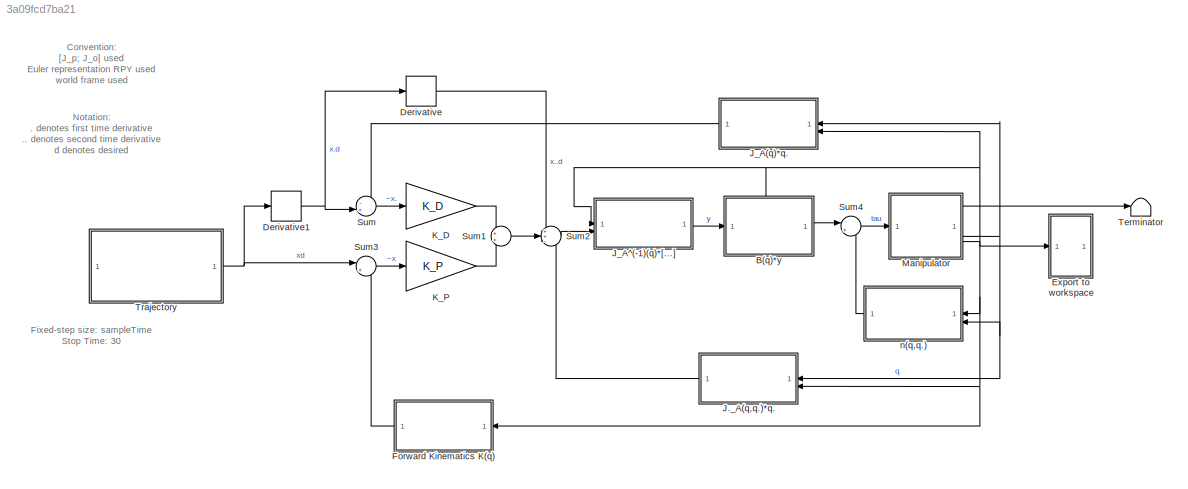
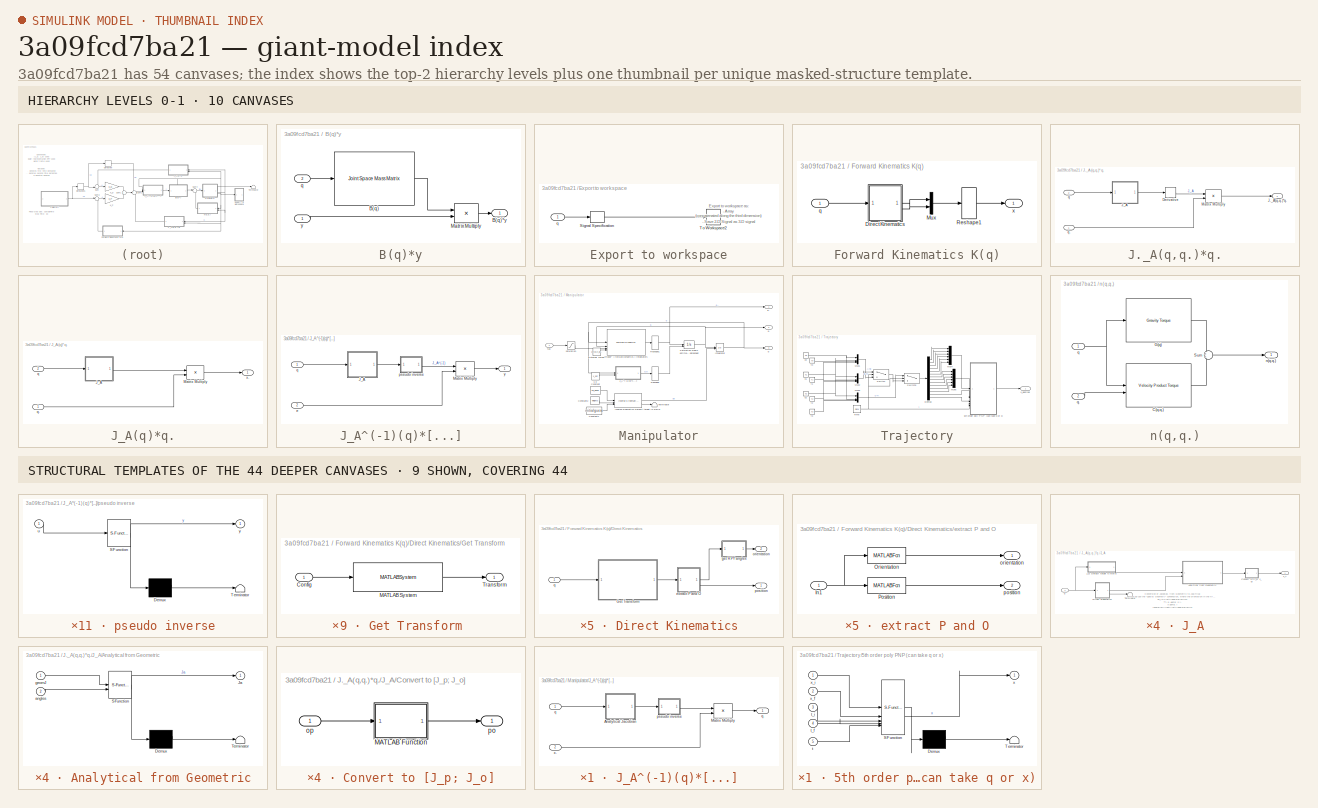
[diagram: thumbnail index - top-2 hierarchy levels (10 canvases) + 9 structural-template representatives of the remaining 44 canvases]
MODEL slx_3a09fcd7ba21
KIND model
CONFIG AbsTol = auto
CONFIG EnableMultiTasking = off
CONFIG FixedStep = sampleTime
CONFIG MaxStep = auto
CONFIG MinStep = auto
CONFIG RelTol = 1e-3
CONFIG SampleTimeConstraint = Unconstrained
CONFIG SolverName = FixedStepAuto
CONFIG StartTime = 0.0
CONFIG StopTime = 30
BLOCK [SubSystem] B(q)*y
  PortSchema = {"entries":[{"content":{"sides":[{"content":{"connectorIds":["In1"]},"type":"ConnectorPlacement.EquallySpacedRectSide","uuid":"33913df9-fd91-41b2-9bc7-1b3e33a51275"},{"content":{"connectorIds":["Out1"],"side":"RIGHT"},"type":"ConnectorPlacement.EquallySpacedRectSide","uuid":"b12fb46d-67b4-41c7-9bd3-75276d256d3b"},{"content":{"connectorIds":["In2"],"side":"TOP"},"type":"ConnectorPlacement.EquallySp...<+245ch>
BLOCK [Reference] B(q)*y/B(q)  REF=robotmaniplib/Joint Space Mass Matrix
  SourceBlock = robotmaniplib/Joint Space Mass Matrix
  SourceType = Joint Space Mass Matrix
BLOCK [Outport] B(q)*y/B(q)*y
BLOCK [Product] B(q)*y/Matrix Multiply
  Multiplication = Matrix(*)
BLOCK [Inport] B(q)*y/q
  Port = 2
BLOCK [Inport] B(q)*y/y
BLOCK [Derivative] Derivative
BLOCK [Derivative] Derivative1
BLOCK [SubSystem] Export to workspace
  NameLocation = right
BLOCK [SignalSpecification] Export to workspace/Signal Specification
  Dimensions = [6,1]
BLOCK [ToWorkspace] Export to workspace/To Workspace2
  MaxDataPoints = inf
  NameLocation = top
  SampleTime = -1
  VariableName = q
BLOCK [Inport] Export to workspace/q
BLOCK [SubSystem] Forward Kinematics K(q)
BLOCK [SubSystem] Forward Kinematics K(q)/Direct Kinematics
BLOCK [SubSystem] Forward Kinematics K(q)/Direct Kinematics/Get Transform 
  LibrarySourceBlock = robotmaniplib/Get Transform
BLOCK [Inport] Forward Kinematics K(q)/Direct Kinematics/Get Transform /Config
  PortDimensions = 6
BLOCK [MATLABSystem] Forward Kinematics K(q)/Direct Kinematics/Get Transform /MATLAB System
  MaskDisplay = disp('GetTransformBlock');\nport_label('input',1,'q');\nport_label('output',1,'tform');
  MaskType = robotics.slmanip.internal.block.GetTransformBlock
  SimulateUsing = Code generation
  SourceBodyName = SourceBody
  System = robotics.slmanip.internal.block.GetTransformBlock
  TargetBodyName = TargetBody
  TreeStruct = TreeStruct
BLOCK [Outport] Forward Kinematics K(q)/Direct Kinematics/Get Transform /Transform
  VectorParamsAs1DForOutWhenUnconnected = off
BLOCK [SubSystem] Forward Kinematics K(q)/Direct Kinematics/extract P and O
BLOCK [Inport] Forward Kinematics K(q)/Direct Kinematics/extract P and O/In1
  NameLocation = top
BLOCK [MATLABFcn] Forward Kinematics K(q)/Direct Kinematics/extract P and O/Orientation
  MATLABFcn = tform2rotm
  Output1D = off
BLOCK [MATLABFcn] Forward Kinematics K(q)/Direct Kinematics/extract P and O/Position
  MATLABFcn = tform2trvec
BLOCK [Outport] Forward Kinematics K(q)/Direct Kinematics/extract P and O/orientation
  NameLocation = top
BLOCK [Outport] Forward Kinematics K(q)/Direct Kinematics/extract P and O/position
  NameLocation = top
  Port = 2
BLOCK [SubSystem] Forward Kinematics K(q)/Direct Kinematics/get RPY angles
  ErrorFcn = Stateflow.Translate.translate
  PermitHierarchicalResolution = ExplicitOnly
  SFBlockType = MATLAB Function
  TreatAsAtomicUnit = on
BLOCK [Demux] Forward Kinematics K(q)/Direct Kinematics/get RPY angles/ Demux 
  Outputs = 1
BLOCK [S-Function] Forward Kinematics K(q)/Direct Kinematics/get RPY angles/ SFunction 
  EnableBusSupport = on
  FunctionName = sf_sfun
  PortCounts = [1 2]
  SFcnIsStateOwnerBlock = off
  SFunctionDeploymentMode = off
  Tag = Stateflow S-Function 6
BLOCK [Terminator] Forward Kinematics K(q)/Direct Kinematics/get RPY angles/ Terminator 
BLOCK [Inport] Forward Kinematics K(q)/Direct Kinematics/get RPY angles/R
BLOCK [Outport] Forward Kinematics K(q)/Direct Kinematics/get RPY angles/rpy
BLOCK [Outport] Forward Kinematics K(q)/Direct Kinematics/orientation
  NameLocation = top
  Port = 2
BLOCK [Outport] Forward Kinematics K(q)/Direct Kinematics/position
BLOCK [Inport] Forward Kinematics K(q)/Direct Kinematics/q
BLOCK [Mux] Forward Kinematics K(q)/Mux
  DisplayOption = bar
  Inputs = 2
BLOCK [Reshape] Forward Kinematics K(q)/Reshape1
  OutputDimensionality = Customize
  OutputDimensions = [6,1]
BLOCK [Inport] Forward Kinematics K(q)/q
BLOCK [Outport] Forward Kinematics K(q)/x
BLOCK [SubSystem] J._A(q,q.)*q.
BLOCK [Derivative] J._A(q,q.)*q./Derivative
BLOCK [Outport] J._A(q,q.)*q./J._A(q,q.)*q.
BLOCK [SubSystem] J._A(q,q.)*q./J_A
BLOCK [SubSystem] J._A(q,q.)*q./J_A/Analytical from Geometric
  ErrorFcn = Stateflow.Translate.translate
  PermitHierarchicalResolution = ExplicitOnly
  SFBlockType = MATLAB Function
  TreatAsAtomicUnit = on
BLOCK [Demux] J._A(q,q.)*q./J_A/Analytical from Geometric/ Demux 
  Outputs = 1
BLOCK [S-Function] J._A(q,q.)*q./J_A/Analytical from Geometric/ SFunction 
  EnableBusSupport = on
  FunctionName = sf_sfun
  PortCounts = [2 2]
  SFcnIsStateOwnerBlock = off
  SFunctionDeploymentMode = off
  Tag = Stateflow S-Function 9
BLOCK [Terminator] J._A(q,q.)*q./J_A/Analytical from Geometric/ Terminator 
BLOCK [Outport] J._A(q,q.)*q./J_A/Analytical from Geometric/Ja
BLOCK [Inport] J._A(q,q.)*q./J_A/Analytical from Geometric/angles
  Port = 2
BLOCK [Inport] J._A(q,q.)*q./J_A/Analytical from Geometric/geomJ
BLOCK [SubSystem] J._A(q,q.)*q./J_A/Convert to [J_p; J_o]
BLOCK [SubSystem] J._A(q,q.)*q./J_A/Convert to [J_p; J_o]/MATLAB Function
  ErrorFcn = Stateflow.Translate.translate
  PermitHierarchicalResolution = ExplicitOnly
  SFBlockType = MATLAB Function
  TreatAsAtomicUnit = on
BLOCK [Demux] J._A(q,q.)*q./J_A/Convert to [J_p; J_o]/MATLAB Function/ Demux 
  Outputs = 1
BLOCK [S-Function] J._A(q,q.)*q./J_A/Convert to [J_p; J_o]/MATLAB Function/ SFunction 
  EnableBusSupport = on
  FunctionName = sf_sfun
  PortCounts = [1 2]
  SFcnIsStateOwnerBlock = off
  SFunctionDeploymentMode = off
  Tag = Stateflow S-Function 12
BLOCK [Terminator] J._A(q,q.)*q./J_A/Convert to [J_p; J_o]/MATLAB Function/ Terminator 
BLOCK [Inport] J._A(q,q.)*q./J_A/Convert to [J_p; J_o]/MATLAB Function/u
BLOCK [Outport] J._A(q,q.)*q./J_A/Convert to [J_p; J_o]/MATLAB Function/y
BLOCK [Inport] J._A(q,q.)*q./J_A/Convert to [J_p; J_o]/op
BLOCK [Outport] J._A(q,q.)*q./J_A/Convert to [J_p; J_o]/po
BLOCK [SubSystem] J._A(q,q.)*q./J_A/Direct Kinematics
BLOCK [SubSystem] J._A(q,q.)*q./J_A/Direct Kinematics/Get Transform
  LibrarySourceBlock = robotmaniplib/Get Transform
BLOCK [Inport] J._A(q,q.)*q./J_A/Direct Kinematics/Get Transform/Config
  PortDimensions = 6
BLOCK [MATLABSystem] J._A(q,q.)*q./J_A/Direct Kinematics/Get Transform/MATLAB System
  MaskDisplay = disp('GetTransformBlock');\nport_label('input',1,'q');\nport_label('output',1,'tform');
  MaskType = robotics.slmanip.internal.block.GetTransformBlock
  SimulateUsing = Code generation
  SourceBodyName = SourceBody
  System = robotics.slmanip.internal.block.GetTransformBlock
  TargetBodyName = TargetBody
  TreeStruct = TreeStruct
BLOCK [Outport] J._A(q,q.)*q./J_A/Direct Kinematics/Get Transform/Transform
  VectorParamsAs1DForOutWhenUnconnected = off
BLOCK [SubSystem] J._A(q,q.)*q./J_A/Direct Kinematics/extract P and O
BLOCK [Inport] J._A(q,q.)*q./J_A/Direct Kinematics/extract P and O/In1
  NameLocation = top
BLOCK [MATLABFcn] J._A(q,q.)*q./J_A/Direct Kinematics/extract P and O/Orientation
  MATLABFcn = tform2rotm
  Output1D = off
BLOCK [MATLABFcn] J._A(q,q.)*q./J_A/Direct Kinematics/extract P and O/Position
  MATLABFcn = tform2trvec
BLOCK [Outport] J._A(q,q.)*q./J_A/Direct Kinematics/extract P and O/orientation
  NameLocation = top
BLOCK [Outport] J._A(q,q.)*q./J_A/Direct Kinematics/extract P and O/position
  NameLocation = top
  Port = 2
BLOCK [SubSystem] J._A(q,q.)*q./J_A/Direct Kinematics/get RPY angles
  ErrorFcn = Stateflow.Translate.translate
  PermitHierarchicalResolution = ExplicitOnly
  SFBlockType = MATLAB Function
  TreatAsAtomicUnit = on
BLOCK [Demux] J._A(q,q.)*q./J_A/Direct Kinematics/get RPY angles/ Demux 
  Outputs = 1
BLOCK [S-Function] J._A(q,q.)*q./J_A/Direct Kinematics/get RPY angles/ SFunction 
  EnableBusSupport = on
  FunctionName = sf_sfun
  PortCounts = [1 2]
  SFcnIsStateOwnerBlock = off
  SFunctionDeploymentMode = off
  Tag = Stateflow S-Function 10
BLOCK [Terminator] J._A(q,q.)*q./J_A/Direct Kinematics/get RPY angles/ Terminator 
BLOCK [Inport] J._A(q,q.)*q./J_A/Direct Kinematics/get RPY angles/R
BLOCK [Outport] J._A(q,q.)*q./J_A/Direct Kinematics/get RPY angles/rpy
BLOCK [Outport] J._A(q,q.)*q./J_A/Direct Kinematics/orientation
  NameLocation = top
BLOCK [Outport] J._A(q,q.)*q./J_A/Direct Kinematics/position
  Port = 2
BLOCK [Inport] J._A(q,q.)*q./J_A/Direct Kinematics/q
BLOCK [Outport] J._A(q,q.)*q./J_A/J_A
BLOCK [SubSystem] J._A(q,q.)*q./J_A/J_G Default target is world
  LibrarySourceBlock = robotmaniplib/Get Jacobian
BLOCK [Inport] J._A(q,q.)*q./J_A/J_G Default target is world/Config
  PortDimensions = 6
BLOCK [Outport] J._A(q,q.)*q./J_A/J_G Default target is world/Jacobian
  VectorParamsAs1DForOutWhenUnconnected = off
BLOCK [MATLABSystem] J._A(q,q.)*q./J_A/J_G Default target is world/MATLAB System
  EEBodyName = EndEffector
  MaskDisplay = disp('GetJacobianBlock');\nport_label('input',1,'q');\nport_label('output',1,'jacobianMat');
  MaskType = robotics.slmanip.internal.block.GetJacobianBlock
  SimulateUsing = Code generation
  System = robotics.slmanip.internal.block.GetJacobianBlock
  TreeStruct = TreeStruct
BLOCK [Terminator] J._A(q,q.)*q./J_A/Terminator
BLOCK [Inport] J._A(q,q.)*q./J_A/q
BLOCK [Product] J._A(q,q.)*q./Matrix Multiply
  Multiplication = Matrix(*)
BLOCK [Inport] J._A(q,q.)*q./q
  Port = 2
BLOCK [Inport] J._A(q,q.)*q./q.
BLOCK [SubSystem] J_A(q)*q.
BLOCK [SubSystem] J_A(q)*q./J_A
BLOCK [SubSystem] J_A(q)*q./J_A/Analytical from Geometric
  ErrorFcn = Stateflow.Translate.translate
  PermitHierarchicalResolution = ExplicitOnly
  SFBlockType = MATLAB Function
  TreatAsAtomicUnit = on
BLOCK [Demux] J_A(q)*q./J_A/Analytical from Geometric/ Demux 
  Outputs = 1
BLOCK [S-Function] J_A(q)*q./J_A/Analytical from Geometric/ SFunction 
  EnableBusSupport = on
  FunctionName = sf_sfun
  PortCounts = [2 2]
  SFcnIsStateOwnerBlock = off
  SFunctionDeploymentMode = off
  Tag = Stateflow S-Function 5
BLOCK [Terminator] J_A(q)*q./J_A/Analytical from Geometric/ Terminator 
BLOCK [Outport] J_A(q)*q./J_A/Analytical from Geometric/Ja
BLOCK [Inport] J_A(q)*q./J_A/Analytical from Geometric/angles
  Port = 2
BLOCK [Inport] J_A(q)*q./J_A/Analytical from Geometric/geomJ
BLOCK [SubSystem] J_A(q)*q./J_A/Convert to [J_p; J_o]
BLOCK [SubSystem] J_A(q)*q./J_A/Convert to [J_p; J_o]/MATLAB Function
  ErrorFcn = Stateflow.Translate.translate
  PermitHierarchicalResolution = ExplicitOnly
  SFBlockType = MATLAB Function
  TreatAsAtomicUnit = on
BLOCK [Demux] J_A(q)*q./J_A/Convert to [J_p; J_o]/MATLAB Function/ Demux 
  Outputs = 1
BLOCK [S-Function] J_A(q)*q./J_A/Convert to [J_p; J_o]/MATLAB Function/ SFunction 
  EnableBusSupport = on
  FunctionName = sf_sfun
  PortCounts = [1 2]
  SFcnIsStateOwnerBlock = off
  SFunctionDeploymentMode = off
  Tag = Stateflow S-Function 15
BLOCK [Terminator] J_A(q)*q./J_A/Convert to [J_p; J_o]/MATLAB Function/ Terminator 
BLOCK [Inport] J_A(q)*q./J_A/Convert to [J_p; J_o]/MATLAB Function/u
BLOCK [Outport] J_A(q)*q./J_A/Convert to [J_p; J_o]/MATLAB Function/y
BLOCK [Inport] J_A(q)*q./J_A/Convert to [J_p; J_o]/op
BLOCK [Outport] J_A(q)*q./J_A/Convert to [J_p; J_o]/po
BLOCK [SubSystem] J_A(q)*q./J_A/Direct Kinematics
BLOCK [SubSystem] J_A(q)*q./J_A/Direct Kinematics/Get Transform
  LibrarySourceBlock = robotmaniplib/Get Transform
BLOCK [Inport] J_A(q)*q./J_A/Direct Kinematics/Get Transform/Config
  PortDimensions = 6
BLOCK [MATLABSystem] J_A(q)*q./J_A/Direct Kinematics/Get Transform/MATLAB System
  MaskDisplay = disp('GetTransformBlock');\nport_label('input',1,'q');\nport_label('output',1,'tform');
  MaskType = robotics.slmanip.internal.block.GetTransformBlock
  SimulateUsing = Code generation
  SourceBodyName = SourceBody
  System = robotics.slmanip.internal.block.GetTransformBlock
  TargetBodyName = TargetBody
  TreeStruct = TreeStruct
BLOCK [Outport] J_A(q)*q./J_A/Direct Kinematics/Get Transform/Transform
  VectorParamsAs1DForOutWhenUnconnected = off
BLOCK [SubSystem] J_A(q)*q./J_A/Direct Kinematics/extract P and O
BLOCK [Inport] J_A(q)*q./J_A/Direct Kinematics/extract P and O/In1
  NameLocation = top
BLOCK [MATLABFcn] J_A(q)*q./J_A/Direct Kinematics/extract P and O/Orientation
  MATLABFcn = tform2rotm
  Output1D = off
BLOCK [MATLABFcn] J_A(q)*q./J_A/Direct Kinematics/extract P and O/Position
  MATLABFcn = tform2trvec
BLOCK [Outport] J_A(q)*q./J_A/Direct Kinematics/extract P and O/orientation
  NameLocation = top
BLOCK [Outport] J_A(q)*q./J_A/Direct Kinematics/extract P and O/position
  NameLocation = top
  Port = 2
BLOCK [SubSystem] J_A(q)*q./J_A/Direct Kinematics/get RPY angles
  ErrorFcn = Stateflow.Translate.translate
  PermitHierarchicalResolution = ExplicitOnly
  SFBlockType = MATLAB Function
  TreatAsAtomicUnit = on
BLOCK [Demux] J_A(q)*q./J_A/Direct Kinematics/get RPY angles/ Demux 
  Outputs = 1
BLOCK [S-Function] J_A(q)*q./J_A/Direct Kinematics/get RPY angles/ SFunction 
  EnableBusSupport = on
  FunctionName = sf_sfun
  PortCounts = [1 2]
  SFcnIsStateOwnerBlock = off
  SFunctionDeploymentMode = off
  Tag = Stateflow S-Function 3
BLOCK [Terminator] J_A(q)*q./J_A/Direct Kinematics/get RPY angles/ Terminator 
BLOCK [Inport] J_A(q)*q./J_A/Direct Kinematics/get RPY angles/R
BLOCK [Outport] J_A(q)*q./J_A/Direct Kinematics/get RPY angles/rpy
BLOCK [Outport] J_A(q)*q./J_A/Direct Kinematics/orientation
  NameLocation = top
BLOCK [Outport] J_A(q)*q./J_A/Direct Kinematics/position
  Port = 2
BLOCK [Inport] J_A(q)*q./J_A/Direct Kinematics/q
BLOCK [Outport] J_A(q)*q./J_A/J_A
BLOCK [SubSystem] J_A(q)*q./J_A/J_G Default target is world
  LibrarySourceBlock = robotmaniplib/Get Jacobian
BLOCK [Inport] J_A(q)*q./J_A/J_G Default target is world/Config
  PortDimensions = 6
BLOCK [Outport] J_A(q)*q./J_A/J_G Default target is world/Jacobian
  VectorParamsAs1DForOutWhenUnconnected = off
BLOCK [MATLABSystem] J_A(q)*q./J_A/J_G Default target is world/MATLAB System
  EEBodyName = EndEffector
  MaskDisplay = disp('GetJacobianBlock');\nport_label('input',1,'q');\nport_label('output',1,'jacobianMat');
  MaskType = robotics.slmanip.internal.block.GetJacobianBlock
  SimulateUsing = Code generation
  System = robotics.slmanip.internal.block.GetJacobianBlock
  TreeStruct = TreeStruct
BLOCK [Terminator] J_A(q)*q./J_A/Terminator
BLOCK [Inport] J_A(q)*q./J_A/q
BLOCK [Product] J_A(q)*q./Matrix Multiply
  Multiplication = Matrix(*)
BLOCK [Inport] J_A(q)*q./q
  Port = 2
BLOCK [Inport] J_A(q)*q./q.
BLOCK [Outport] J_A(q)*q./x.
BLOCK [SubSystem] J_A^(-1)(q)*[...]
BLOCK [SubSystem] J_A^(-1)(q)*[...]/J_A
BLOCK [SubSystem] J_A^(-1)(q)*[...]/J_A/Analytical from Geometric
  ErrorFcn = Stateflow.Translate.translate
  PermitHierarchicalResolution = ExplicitOnly
  SFBlockType = MATLAB Function
  TreatAsAtomicUnit = on
BLOCK [Demux] J_A^(-1)(q)*[...]/J_A/Analytical from Geometric/ Demux 
  Outputs = 1
BLOCK [S-Function] J_A^(-1)(q)*[...]/J_A/Analytical from Geometric/ SFunction 
  EnableBusSupport = on
  FunctionName = sf_sfun
  PortCounts = [2 2]
  SFcnIsStateOwnerBlock = off
  SFunctionDeploymentMode = off
  Tag = Stateflow S-Function 1
BLOCK [Terminator] J_A^(-1)(q)*[...]/J_A/Analytical from Geometric/ Terminator 
BLOCK [Outport] J_A^(-1)(q)*[...]/J_A/Analytical from Geometric/Ja
BLOCK [Inport] J_A^(-1)(q)*[...]/J_A/Analytical from Geometric/angles
  Port = 2
BLOCK [Inport] J_A^(-1)(q)*[...]/J_A/Analytical from Geometric/geomJ
BLOCK [SubSystem] J_A^(-1)(q)*[...]/J_A/Convert to [J_p; J_o]
BLOCK [SubSystem] J_A^(-1)(q)*[...]/J_A/Convert to [J_p; J_o]/MATLAB Function
  ErrorFcn = Stateflow.Translate.translate
  PermitHierarchicalResolution = ExplicitOnly
  SFBlockType = MATLAB Function
  TreatAsAtomicUnit = on
BLOCK [Demux] J_A^(-1)(q)*[...]/J_A/Convert to [J_p; J_o]/MATLAB Function/ Demux 
  Outputs = 1
BLOCK [S-Function] J_A^(-1)(q)*[...]/J_A/Convert to [J_p; J_o]/MATLAB Function/ SFunction 
  EnableBusSupport = on
  FunctionName = sf_sfun
  PortCounts = [1 2]
  SFcnIsStateOwnerBlock = off
  SFunctionDeploymentMode = off
  Tag = Stateflow S-Function 14
BLOCK [Terminator] J_A^(-1)(q)*[...]/J_A/Convert to [J_p; J_o]/MATLAB Function/ Terminator 
BLOCK [Inport] J_A^(-1)(q)*[...]/J_A/Convert to [J_p; J_o]/MATLAB Function/u
BLOCK [Outport] J_A^(-1)(q)*[...]/J_A/Convert to [J_p; J_o]/MATLAB Function/y
BLOCK [Inport] J_A^(-1)(q)*[...]/J_A/Convert to [J_p; J_o]/op
BLOCK [Outport] J_A^(-1)(q)*[...]/J_A/Convert to [J_p; J_o]/po
BLOCK [SubSystem] J_A^(-1)(q)*[...]/J_A/Direct Kinematics
BLOCK [SubSystem] J_A^(-1)(q)*[...]/J_A/Direct Kinematics/Get Transform
  LibrarySourceBlock = robotmaniplib/Get Transform
BLOCK [Inport] J_A^(-1)(q)*[...]/J_A/Direct Kinematics/Get Transform/Config
  PortDimensions = 6
BLOCK [MATLABSystem] J_A^(-1)(q)*[...]/J_A/Direct Kinematics/Get Transform/MATLAB System
  MaskDisplay = disp('GetTransformBlock');\nport_label('input',1,'q');\nport_label('output',1,'tform');
  MaskType = robotics.slmanip.internal.block.GetTransformBlock
  SimulateUsing = Code generation
  SourceBodyName = SourceBody
  System = robotics.slmanip.internal.block.GetTransformBlock
  TargetBodyName = TargetBody
  TreeStruct = TreeStruct
BLOCK [Outport] J_A^(-1)(q)*[...]/J_A/Direct Kinematics/Get Transform/Transform
  VectorParamsAs1DForOutWhenUnconnected = off
BLOCK [SubSystem] J_A^(-1)(q)*[...]/J_A/Direct Kinematics/extract P and O
BLOCK [Inport] J_A^(-1)(q)*[...]/J_A/Direct Kinematics/extract P and O/In1
  NameLocation = top
BLOCK [MATLABFcn] J_A^(-1)(q)*[...]/J_A/Direct Kinematics/extract P and O/Orientation
  MATLABFcn = tform2rotm
  Output1D = off
BLOCK [MATLABFcn] J_A^(-1)(q)*[...]/J_A/Direct Kinematics/extract P and O/Position
  MATLABFcn = tform2trvec
BLOCK [Outport] J_A^(-1)(q)*[...]/J_A/Direct Kinematics/extract P and O/orientation
  NameLocation = top
BLOCK [Outport] J_A^(-1)(q)*[...]/J_A/Direct Kinematics/extract P and O/position
  NameLocation = top
  Port = 2
BLOCK [SubSystem] J_A^(-1)(q)*[...]/J_A/Direct Kinematics/get RPY angles
  ErrorFcn = Stateflow.Translate.translate
  PermitHierarchicalResolution = ExplicitOnly
  SFBlockType = MATLAB Function
  TreatAsAtomicUnit = on
BLOCK [Demux] J_A^(-1)(q)*[...]/J_A/Direct Kinematics/get RPY angles/ Demux 
  Outputs = 1
BLOCK [S-Function] J_A^(-1)(q)*[...]/J_A/Direct Kinematics/get RPY angles/ SFunction 
  EnableBusSupport = on
  FunctionName = sf_sfun
  PortCounts = [1 2]
  SFcnIsStateOwnerBlock = off
  SFunctionDeploymentMode = off
  Tag = Stateflow S-Function 2
BLOCK [Terminator] J_A^(-1)(q)*[...]/J_A/Direct Kinematics/get RPY angles/ Terminator 
BLOCK [Inport] J_A^(-1)(q)*[...]/J_A/Direct Kinematics/get RPY angles/R
BLOCK [Outport] J_A^(-1)(q)*[...]/J_A/Direct Kinematics/get RPY angles/rpy
BLOCK [Outport] J_A^(-1)(q)*[...]/J_A/Direct Kinematics/orientation
  NameLocation = top
BLOCK [Outport] J_A^(-1)(q)*[...]/J_A/Direct Kinematics/position
  Port = 2
BLOCK [Inport] J_A^(-1)(q)*[...]/J_A/Direct Kinematics/q
BLOCK [SubSystem] J_A^(-1)(q)*[...]/J_A/J_G Default target is world
  LibrarySourceBlock = robotmaniplib/Get Jacobian
BLOCK [Inport] J_A^(-1)(q)*[...]/J_A/J_G Default target is world/Config
  PortDimensions = 6
BLOCK [Outport] J_A^(-1)(q)*[...]/J_A/J_G Default target is world/Jacobian
  VectorParamsAs1DForOutWhenUnconnected = off
BLOCK [MATLABSystem] J_A^(-1)(q)*[...]/J_A/J_G Default target is world/MATLAB System
  EEBodyName = EndEffector
  MaskDisplay = disp('GetJacobianBlock');\nport_label('input',1,'q');\nport_label('output',1,'jacobianMat');
  MaskType = robotics.slmanip.internal.block.GetJacobianBlock
  SimulateUsing = Code generation
  System = robotics.slmanip.internal.block.GetJacobianBlock
  TreeStruct = TreeStruct
BLOCK [Outport] J_A^(-1)(q)*[...]/J_A/Ja
BLOCK [Terminator] J_A^(-1)(q)*[...]/J_A/Terminator
BLOCK [Inport] J_A^(-1)(q)*[...]/J_A/q
BLOCK [Product] J_A^(-1)(q)*[...]/Matrix Multiply
  Multiplication = Matrix(*)
BLOCK [Inport] J_A^(-1)(q)*[...]/e
  Port = 2
BLOCK [SubSystem] J_A^(-1)(q)*[...]/pseudo inverse
  ErrorFcn = Stateflow.Translate.translate
  PermitHierarchicalResolution = ExplicitOnly
  SFBlockType = MATLAB Function
  TreatAsAtomicUnit = on
BLOCK [Demux] J_A^(-1)(q)*[...]/pseudo inverse/ Demux 
  Outputs = 1
BLOCK [S-Function] J_A^(-1)(q)*[...]/pseudo inverse/ SFunction 
  EnableBusSupport = on
  FunctionName = sf_sfun
  PortCounts = [1 2]
  SFcnIsStateOwnerBlock = off
  SFunctionDeploymentMode = off
  Tag = Stateflow S-Function 4
BLOCK [Terminator] J_A^(-1)(q)*[...]/pseudo inverse/ Terminator 
BLOCK [Inport] J_A^(-1)(q)*[...]/pseudo inverse/u
BLOCK [Outport] J_A^(-1)(q)*[...]/pseudo inverse/y
BLOCK [Inport] J_A^(-1)(q)*[...]/q
BLOCK [Outport] J_A^(-1)(q)*[...]/y
BLOCK [Gain] K_D
  Gain = K_D
  Multiplication = Matrix(K*u)
  NameLocation = top
BLOCK [Gain] K_P
  Gain = K_P
  Multiplication = Matrix(K*u)
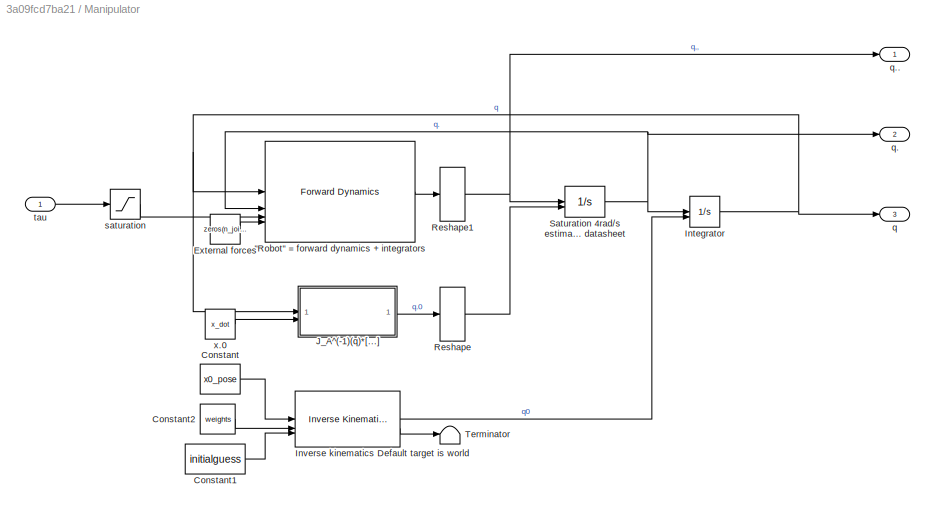
BLOCK [SubSystem] Manipulator
BLOCK [Reference] Manipulator/"Robot" = forward dynamics + integrators  REF=robotmaniplib/Forward Dynamics
  SourceBlock = robotmaniplib/Forward Dynamics
  SourceType = Forward Dynamics
BLOCK [Constant] Manipulator/Constant
  Value = x0_pose
BLOCK [Constant] Manipulator/Constant1
  Value = initialguess
BLOCK [Constant] Manipulator/Constant2
  Value = weights
BLOCK [Constant] Manipulator/External forces
  Value = zeros(n_joints,robot.NumBodies)
BLOCK [Integrator] Manipulator/Integrator
  InitialConditionSource = external
  LimitOutput = on
BLOCK [Reference] Manipulator/Inverse kinematics Default target is world  REF=robotmaniplib/Inverse Kinematics
  SourceBlock = robotmaniplib/Inverse Kinematics
  SourceType = Inverse Kinematics
BLOCK [SubSystem] Manipulator/J_A^(-1)(q)*[...]
BLOCK [SubSystem] Manipulator/J_A^(-1)(q)*[...]/Analytical Jacobian
BLOCK [SubSystem] Manipulator/J_A^(-1)(q)*[...]/Analytical Jacobian/Analytical from Geometric
  ErrorFcn = Stateflow.Translate.translate
  PermitHierarchicalResolution = ExplicitOnly
  SFBlockType = MATLAB Function
  TreatAsAtomicUnit = on
BLOCK [Demux] Manipulator/J_A^(-1)(q)*[...]/Analytical Jacobian/Analytical from Geometric/ Demux 
  Outputs = 1
BLOCK [S-Function] Manipulator/J_A^(-1)(q)*[...]/Analytical Jacobian/Analytical from Geometric/ SFunction 
  EnableBusSupport = on
  FunctionName = sf_sfun
  PortCounts = [2 2]
  SFcnIsStateOwnerBlock = off
  SFunctionDeploymentMode = off
  Tag = Stateflow S-Function 7
BLOCK [Terminator] Manipulator/J_A^(-1)(q)*[...]/Analytical Jacobian/Analytical from Geometric/ Terminator 
BLOCK [Outport] Manipulator/J_A^(-1)(q)*[...]/Analytical Jacobian/Analytical from Geometric/Ja
BLOCK [Inport] Manipulator/J_A^(-1)(q)*[...]/Analytical Jacobian/Analytical from Geometric/angles
  Port = 2
BLOCK [Inport] Manipulator/J_A^(-1)(q)*[...]/Analytical Jacobian/Analytical from Geometric/geomJ
BLOCK [SubSystem] Manipulator/J_A^(-1)(q)*[...]/Analytical Jacobian/Convert to [J_p; J_o]
BLOCK [SubSystem] Manipulator/J_A^(-1)(q)*[...]/Analytical Jacobian/Convert to [J_p; J_o]/MATLAB Function
  ErrorFcn = Stateflow.Translate.translate
  PermitHierarchicalResolution = ExplicitOnly
  SFBlockType = MATLAB Function
  TreatAsAtomicUnit = on
BLOCK [Demux] Manipulator/J_A^(-1)(q)*[...]/Analytical Jacobian/Convert to [J_p; J_o]/MATLAB Function/ Demux 
  Outputs = 1
BLOCK [S-Function] Manipulator/J_A^(-1)(q)*[...]/Analytical Jacobian/Convert to [J_p; J_o]/MATLAB Function/ SFunction 
  EnableBusSupport = on
  FunctionName = sf_sfun
  PortCounts = [1 2]
  SFcnIsStateOwnerBlock = off
  SFunctionDeploymentMode = off
  Tag = Stateflow S-Function 16
BLOCK [Terminator] Manipulator/J_A^(-1)(q)*[...]/Analytical Jacobian/Convert to [J_p; J_o]/MATLAB Function/ Terminator 
BLOCK [Inport] Manipulator/J_A^(-1)(q)*[...]/Analytical Jacobian/Convert to [J_p; J_o]/MATLAB Function/u
BLOCK [Outport] Manipulator/J_A^(-1)(q)*[...]/Analytical Jacobian/Convert to [J_p; J_o]/MATLAB Function/y
BLOCK [Inport] Manipulator/J_A^(-1)(q)*[...]/Analytical Jacobian/Convert to [J_p; J_o]/op
BLOCK [Outport] Manipulator/J_A^(-1)(q)*[...]/Analytical Jacobian/Convert to [J_p; J_o]/po
BLOCK [SubSystem] Manipulator/J_A^(-1)(q)*[...]/Analytical Jacobian/Direct Kinematics
BLOCK [SubSystem] Manipulator/J_A^(-1)(q)*[...]/Analytical Jacobian/Direct Kinematics/Get Transform
  LibrarySourceBlock = robotmaniplib/Get Transform
BLOCK [Inport] Manipulator/J_A^(-1)(q)*[...]/Analytical Jacobian/Direct Kinematics/Get Transform/Config
  PortDimensions = 6
BLOCK [MATLABSystem] Manipulator/J_A^(-1)(q)*[...]/Analytical Jacobian/Direct Kinematics/Get Transform/MATLAB System
  MaskDisplay = disp('GetTransformBlock');\nport_label('input',1,'q');\nport_label('output',1,'tform');
  MaskType = robotics.slmanip.internal.block.GetTransformBlock
  SimulateUsing = Code generation
  SourceBodyName = SourceBody
  System = robotics.slmanip.internal.block.GetTransformBlock
  TargetBodyName = TargetBody
  TreeStruct = TreeStruct
BLOCK [Outport] Manipulator/J_A^(-1)(q)*[...]/Analytical Jacobian/Direct Kinematics/Get Transform/Transform
  VectorParamsAs1DForOutWhenUnconnected = off
BLOCK [SubSystem] Manipulator/J_A^(-1)(q)*[...]/Analytical Jacobian/Direct Kinematics/extract P and O
BLOCK [Inport] Manipulator/J_A^(-1)(q)*[...]/Analytical Jacobian/Direct Kinematics/extract P and O/In1
  NameLocation = top
BLOCK [MATLABFcn] Manipulator/J_A^(-1)(q)*[...]/Analytical Jacobian/Direct Kinematics/extract P and O/Orientation
  MATLABFcn = tform2rotm
  Output1D = off
BLOCK [MATLABFcn] Manipulator/J_A^(-1)(q)*[...]/Analytical Jacobian/Direct Kinematics/extract P and O/Position
  MATLABFcn = tform2trvec
BLOCK [Outport] Manipulator/J_A^(-1)(q)*[...]/Analytical Jacobian/Direct Kinematics/extract P and O/orientation
  NameLocation = top
BLOCK [Outport] Manipulator/J_A^(-1)(q)*[...]/Analytical Jacobian/Direct Kinematics/extract P and O/position
  NameLocation = top
  Port = 2
BLOCK [SubSystem] Manipulator/J_A^(-1)(q)*[...]/Analytical Jacobian/Direct Kinematics/get RPY angles
  ErrorFcn = Stateflow.Translate.translate
  PermitHierarchicalResolution = ExplicitOnly
  SFBlockType = MATLAB Function
  TreatAsAtomicUnit = on
BLOCK [Demux] Manipulator/J_A^(-1)(q)*[...]/Analytical Jacobian/Direct Kinematics/get RPY angles/ Demux 
  Outputs = 1
BLOCK [S-Function] Manipulator/J_A^(-1)(q)*[...]/Analytical Jacobian/Direct Kinematics/get RPY angles/ SFunction 
  EnableBusSupport = on
  FunctionName = sf_sfun
  PortCounts = [1 2]
  SFcnIsStateOwnerBlock = off
  SFunctionDeploymentMode = off
  Tag = Stateflow S-Function 8
BLOCK [Terminator] Manipulator/J_A^(-1)(q)*[...]/Analytical Jacobian/Direct Kinematics/get RPY angles/ Terminator 
BLOCK [Inport] Manipulator/J_A^(-1)(q)*[...]/Analytical Jacobian/Direct Kinematics/get RPY angles/R
BLOCK [Outport] Manipulator/J_A^(-1)(q)*[...]/Analytical Jacobian/Direct Kinematics/get RPY angles/rpy
BLOCK [Outport] Manipulator/J_A^(-1)(q)*[...]/Analytical Jacobian/Direct Kinematics/orientation
  NameLocation = top
BLOCK [Outport] Manipulator/J_A^(-1)(q)*[...]/Analytical Jacobian/Direct Kinematics/position
  Port = 2
BLOCK [Inport] Manipulator/J_A^(-1)(q)*[...]/Analytical Jacobian/Direct Kinematics/q
BLOCK [SubSystem] Manipulator/J_A^(-1)(q)*[...]/Analytical Jacobian/Get Jacobian Default target is world
  LibrarySourceBlock = robotmaniplib/Get Jacobian
BLOCK [Inport] Manipulator/J_A^(-1)(q)*[...]/Analytical Jacobian/Get Jacobian Default target is world/Config
  PortDimensions = 6
BLOCK [Outport] Manipulator/J_A^(-1)(q)*[...]/Analytical Jacobian/Get Jacobian Default target is world/Jacobian
  VectorParamsAs1DForOutWhenUnconnected = off
BLOCK [MATLABSystem] Manipulator/J_A^(-1)(q)*[...]/Analytical Jacobian/Get Jacobian Default target is world/MATLAB System
  EEBodyName = EndEffector
  MaskDisplay = disp('GetJacobianBlock');\nport_label('input',1,'q');\nport_label('output',1,'jacobianMat');
  MaskType = robotics.slmanip.internal.block.GetJacobianBlock
  SimulateUsing = Code generation
  System = robotics.slmanip.internal.block.GetJacobianBlock
  TreeStruct = TreeStruct
BLOCK [Outport] Manipulator/J_A^(-1)(q)*[...]/Analytical Jacobian/Ja
BLOCK [Terminator] Manipulator/J_A^(-1)(q)*[...]/Analytical Jacobian/Terminator
BLOCK [Inport] Manipulator/J_A^(-1)(q)*[...]/Analytical Jacobian/q
BLOCK [Product] Manipulator/J_A^(-1)(q)*[...]/Matrix Multiply
  Multiplication = Matrix(*)
BLOCK [SubSystem] Manipulator/J_A^(-1)(q)*[...]/pseudo inverse
  ErrorFcn = Stateflow.Translate.translate
  PermitHierarchicalResolution = ExplicitOnly
  SFBlockType = MATLAB Function
  TreatAsAtomicUnit = on
BLOCK [Demux] Manipulator/J_A^(-1)(q)*[...]/pseudo inverse/ Demux 
  Outputs = 1
BLOCK [S-Function] Manipulator/J_A^(-1)(q)*[...]/pseudo inverse/ SFunction 
  EnableBusSupport = on
  FunctionName = sf_sfun
  PortCounts = [1 2]
  SFcnIsStateOwnerBlock = off
  SFunctionDeploymentMode = off
  Tag = Stateflow S-Function 13
BLOCK [Terminator] Manipulator/J_A^(-1)(q)*[...]/pseudo inverse/ Terminator 
BLOCK [Inport] Manipulator/J_A^(-1)(q)*[...]/pseudo inverse/u
BLOCK [Outport] Manipulator/J_A^(-1)(q)*[...]/pseudo inverse/y
BLOCK [Inport] Manipulator/J_A^(-1)(q)*[...]/q
BLOCK [Outport] Manipulator/J_A^(-1)(q)*[...]/q.
BLOCK [Inport] Manipulator/J_A^(-1)(q)*[...]/x.
  Port = 2
BLOCK [Reshape] Manipulator/Reshape
  OutputDimensionality = Customize
  OutputDimensions = [6,1]
BLOCK [Reshape] Manipulator/Reshape1
  OutputDimensionality = Customize
  OutputDimensions = [6,1]
BLOCK [Integrator] Manipulator/Saturation 4rad//s estimated based on datasheet
  InitialConditionSource = external
  LimitOutput = on
  LowerSaturationLimit = -4
  UpperSaturationLimit = 4
BLOCK [Terminator] Manipulator/Terminator
BLOCK [Outport] Manipulator/q
  Port = 3
BLOCK [Outport] Manipulator/q.
  Port = 2
BLOCK [Outport] Manipulator/q..
BLOCK [Saturate] Manipulator/saturation
  LowerLimit = -inf
  UpperLimit = inf
BLOCK [Inport] Manipulator/tau
BLOCK [Constant] Manipulator/x.0
  Value = x_dot
BLOCK [Sum] Sum
  Inputs = -+|
BLOCK [Sum] Sum1
BLOCK [Sum] Sum2
  Inputs = ++-
BLOCK [Sum] Sum3
  Inputs = |+-
BLOCK [Sum] Sum4
  Inputs = |++
BLOCK [Terminator] Terminator
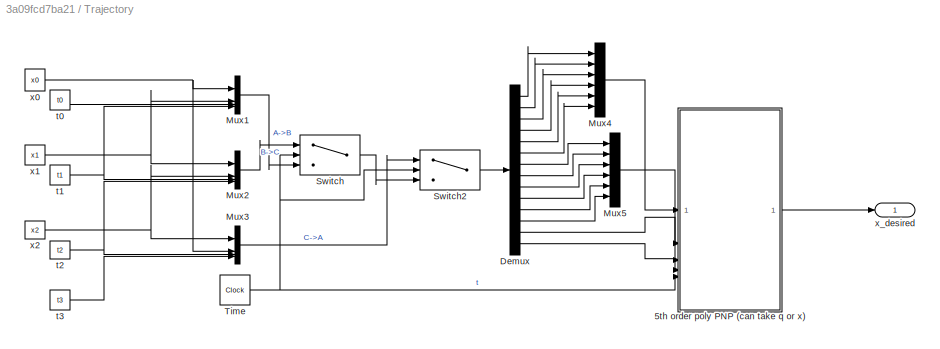
BLOCK [SubSystem] Trajectory
BLOCK [SubSystem] Trajectory/5th order poly PNP (can take q or x)
  ErrorFcn = Stateflow.Translate.translate
  PermitHierarchicalResolution = ExplicitOnly
  SFBlockType = MATLAB Function
  TreatAsAtomicUnit = on
BLOCK [Demux] Trajectory/5th order poly PNP (can take q or x)/ Demux 
  Outputs = 1
BLOCK [S-Function] Trajectory/5th order poly PNP (can take q or x)/ SFunction 
  EnableBusSupport = on
  FunctionName = sf_sfun
  PortCounts = [5 2]
  SFcnIsStateOwnerBlock = off
  SFunctionDeploymentMode = off
  Tag = Stateflow S-Function 11
BLOCK [Terminator] Trajectory/5th order poly PNP (can take q or x)/ Terminator 
BLOCK [Inport] Trajectory/5th order poly PNP (can take q or x)/t
  Port = 5
BLOCK [Inport] Trajectory/5th order poly PNP (can take q or x)/t_f
  Port = 4
BLOCK [Inport] Trajectory/5th order poly PNP (can take q or x)/t_i
  Port = 3
BLOCK [Outport] Trajectory/5th order poly PNP (can take q or x)/x
BLOCK [Inport] Trajectory/5th order poly PNP (can take q or x)/x_f
  Port = 2
BLOCK [Inport] Trajectory/5th order poly PNP (can take q or x)/x_i
BLOCK [Demux] Trajectory/Demux
  Outputs = 14
BLOCK [Mux] Trajectory/Mux1
  DisplayOption = bar
BLOCK [Mux] Trajectory/Mux2
  DisplayOption = bar
BLOCK [Mux] Trajectory/Mux3
  DisplayOption = bar
BLOCK [Mux] Trajectory/Mux4
  DisplayOption = bar
  Inputs = 6
BLOCK [Mux] Trajectory/Mux5
  DisplayOption = bar
  Inputs = 6
BLOCK [Switch] Trajectory/Switch
  InputSameDT = off
  SaturateOnIntegerOverflow = off
  Threshold = t1
BLOCK [Switch] Trajectory/Switch2
  InputSameDT = off
  SaturateOnIntegerOverflow = off
  Threshold = t2
BLOCK [Clock] Trajectory/Time
  DisplayTime = on
BLOCK [Constant] Trajectory/t0
  Value = t0
BLOCK [Constant] Trajectory/t1
  Value = t1
BLOCK [Constant] Trajectory/t2
  Value = t2
BLOCK [Constant] Trajectory/t3
  Value = t3
BLOCK [Constant] Trajectory/x0
  Value = x0
BLOCK [Constant] Trajectory/x1
  Value = x1
BLOCK [Constant] Trajectory/x2
  Value = x2
BLOCK [Outport] Trajectory/x_desired
BLOCK [SubSystem] n(q,q.)
BLOCK [Reference] n(q,q.)/C(q,q.)  REF=robotmaniplib/Velocity Product Torque
  SourceBlock = robotmaniplib/Velocity Product Torque
  SourceType = Velocity Product Torque
BLOCK [Reference] n(q,q.)/G(q)  REF=robotmaniplib/Gravity Torque
  SourceBlock = robotmaniplib/Gravity Torque
  SourceType = Gravity Torque
BLOCK [Sum] n(q,q.)/Sum
BLOCK [Outport] n(q,q.)/n(q,q.)
BLOCK [Inport] n(q,q.)/q
BLOCK [Inport] n(q,q.)/q.
  Port = 2
ANNOTATION (root): Convention: [J_p; J_o] used Euler representation RPY used world frame used
ANNOTATION (root): Fixed-step size: sampleTime Stop Time: 30
ANNOTATION (root): Notation: . denotes first time derivative .. denotes second time derivative d denotes desired
ANNOTATION Export to workspace: Export to workspace as: - Array - Save 2-D Signal as 3-D signal (concatenated along the third dimension)
ANNOTATION J._A(q,q.)*q./J_A: Conversion of Jacobian, from Geometric to Analytical Matlab use the "Spatial Geometry" convenction, where the orientation in the first three rows instead of the last three rows. So we use: $J_{A}=\left[\begin{array}{cc} T^{-1} & 0 \\ 0 & I \end{array}\right]\left[\begin{array}{c} J_{O} \\ J_{P} \end{array}\right]=\left[\begin{array}{l} T^{-1} J_{O} \\ 0 \end{array}\right]+\left[\begin{array}{c} 0\...<+525ch>
ANNOTATION J_A(q)*q./J_A: Conversion of Jacobian, from Geometric to Analytical Matlab use the "Spatial Geometry" convenction, where the orientation in the first three rows instead of the last three rows. So we use: $J_{A}=\left[\begin{array}{cc} T^{-1} & 0 \\ 0 & I \end{array}\right]\left[\begin{array}{c} J_{O} \\ J_{P} \end{array}\right]=\left[\begin{array}{l} T^{-1} J_{O} \\ 0 \end{array}\right]+\left[\begin{array}{c} 0\...<+525ch>
ANNOTATION J_A^(-1)(q)*[...]/J_A: Conversion of Jacobian, from Geometric to Analytical Matlab use the "Spatial Geometry" convenction, where the orientation in the first three rows instead of the last three rows. So we use: $J_{A}=\left[\begin{array}{cc} T^{-1} & 0 \\ 0 & I \end{array}\right]\left[\begin{array}{c} J_{O} \\ J_{P} \end{array}\right]=\left[\begin{array}{l} T^{-1} J_{O} \\ 0 \end{array}\right]+\left[\begin{array}{c} 0\...<+525ch>
ANNOTATION Manipulator/J_A^(-1)(q)*[...]/Analytical Jacobian: Conversion of Jacobian, from Geometric to Analytical Matlab use the "Spatial Geometry" convenction, where the orientation in the first three rows instead of the last three rows. So we use: $J_{A}=\left[\begin{array}{cc} T^{-1} & 0 \\ 0 & I \end{array}\right]\left[\begin{array}{c} J_{O} \\ J_{P} \end{array}\right]=\left[\begin{array}{l} T^{-1} J_{O} \\ 0 \end{array}\right]+\left[\begin{array}{c} 0\...<+525ch>
LINE B(q)*y/B(q):1 -> B(q)*y/Matrix Multiply:1
LINE B(q)*y/Matrix Multiply:1 -> B(q)*y/B(q)*y:1
LINE B(q)*y/q:1 -> B(q)*y/B(q):1
LINE B(q)*y/y:1 -> B(q)*y/Matrix Multiply:2
LINE B(q)*y:1 -> Sum4:1
NET Derivative1:1 -> Derivative:1, Sum:2
LINE Derivative:1 -> Sum2:1
LINE Export to workspace/Signal Specification:1 -> Export to workspace/To Workspace2:1
LINE Export to workspace/q:1 -> Export to workspace/Signal Specification:1
LINE Forward Kinematics K(q)/Direct Kinematics/Get Transform :1 -> Forward Kinematics K(q)/Direct Kinematics/extract P and O:1
NET Forward Kinematics K(q)/Direct Kinematics/extract P and O/In1:1 -> Forward Kinematics K(q)/Direct Kinematics/extract P and O/Orientation:1, Forward Kinematics K(q)/Direct Kinematics/extract P and O/Position:1
LINE Forward Kinematics K(q)/Direct Kinematics/extract P and O/Orientation:1 -> Forward Kinematics K(q)/Direct Kinematics/extract P and O/orientation:1
LINE Forward Kinematics K(q)/Direct Kinematics/extract P and O/Position:1 -> Forward Kinematics K(q)/Direct Kinematics/extract P and O/position:1
LINE Forward Kinematics K(q)/Direct Kinematics/extract P and O:1 -> Forward Kinematics K(q)/Direct Kinematics/get RPY angles:1
LINE Forward Kinematics K(q)/Direct Kinematics/extract P and O:2 -> Forward Kinematics K(q)/Direct Kinematics/position:1
LINE Forward Kinematics K(q)/Direct Kinematics/get RPY angles:1 -> Forward Kinematics K(q)/Direct Kinematics/orientation:1
LINE Forward Kinematics K(q)/Direct Kinematics/q:1 -> Forward Kinematics K(q)/Direct Kinematics/Get Transform :1
LINE Forward Kinematics K(q)/Direct Kinematics:1 -> Forward Kinematics K(q)/Mux:1
LINE Forward Kinematics K(q)/Direct Kinematics:2 -> Forward Kinematics K(q)/Mux:2
LINE Forward Kinematics K(q)/Mux:1 -> Forward Kinematics K(q)/Reshape1:1
LINE Forward Kinematics K(q)/Reshape1:1 -> Forward Kinematics K(q)/x:1
LINE Forward Kinematics K(q)/q:1 -> Forward Kinematics K(q)/Direct Kinematics:1
LINE Forward Kinematics K(q):1 -> Sum3:2
LINE J._A(q,q.)*q./Derivative:1 -> J._A(q,q.)*q./Matrix Multiply:1
LINE J._A(q,q.)*q./J_A/Analytical from Geometric:1 -> J._A(q,q.)*q./J_A/Convert to [J_p; J_o]:1
LINE J._A(q,q.)*q./J_A/Convert to [J_p; J_o]/MATLAB Function:1 -> J._A(q,q.)*q./J_A/Convert to [J_p; J_o]/po:1
LINE J._A(q,q.)*q./J_A/Convert to [J_p; J_o]/op:1 -> J._A(q,q.)*q./J_A/Convert to [J_p; J_o]/MATLAB Function:1
LINE J._A(q,q.)*q./J_A/Convert to [J_p; J_o]:1 -> J._A(q,q.)*q./J_A/J_A:1
LINE J._A(q,q.)*q./J_A/Direct Kinematics/Get Transform:1 -> J._A(q,q.)*q./J_A/Direct Kinematics/extract P and O:1
NET J._A(q,q.)*q./J_A/Direct Kinematics/extract P and O/In1:1 -> J._A(q,q.)*q./J_A/Direct Kinematics/extract P and O/Orientation:1, J._A(q,q.)*q./J_A/Direct Kinematics/extract P and O/Position:1
LINE J._A(q,q.)*q./J_A/Direct Kinematics/extract P and O/Orientation:1 -> J._A(q,q.)*q./J_A/Direct Kinematics/extract P and O/orientation:1
LINE J._A(q,q.)*q./J_A/Direct Kinematics/extract P and O/Position:1 -> J._A(q,q.)*q./J_A/Direct Kinematics/extract P and O/position:1
LINE J._A(q,q.)*q./J_A/Direct Kinematics/extract P and O:1 -> J._A(q,q.)*q./J_A/Direct Kinematics/get RPY angles:1
LINE J._A(q,q.)*q./J_A/Direct Kinematics/extract P and O:2 -> J._A(q,q.)*q./J_A/Direct Kinematics/position:1
LINE J._A(q,q.)*q./J_A/Direct Kinematics/get RPY angles:1 -> J._A(q,q.)*q./J_A/Direct Kinematics/orientation:1
LINE J._A(q,q.)*q./J_A/Direct Kinematics/q:1 -> J._A(q,q.)*q./J_A/Direct Kinematics/Get Transform:1
LINE J._A(q,q.)*q./J_A/Direct Kinematics:1 -> J._A(q,q.)*q./J_A/Analytical from Geometric:2
LINE J._A(q,q.)*q./J_A/Direct Kinematics:2 -> J._A(q,q.)*q./J_A/Terminator:1
LINE J._A(q,q.)*q./J_A/J_G Default target is world:1 -> J._A(q,q.)*q./J_A/Analytical from Geometric:1
NET J._A(q,q.)*q./J_A/q:1 -> J._A(q,q.)*q./J_A/Direct Kinematics:1, J._A(q,q.)*q./J_A/J_G Default target is world:1
LINE J._A(q,q.)*q./J_A:1 -> J._A(q,q.)*q./Derivative:1
LINE J._A(q,q.)*q./Matrix Multiply:1 -> J._A(q,q.)*q./J._A(q,q.)*q.:1
LINE J._A(q,q.)*q./q.:1 -> J._A(q,q.)*q./Matrix Multiply:2
LINE J._A(q,q.)*q./q:1 -> J._A(q,q.)*q./J_A:1
LINE J._A(q,q.)*q.:1 -> Sum2:3
LINE J_A(q)*q./J_A/Analytical from Geometric:1 -> J_A(q)*q./J_A/Convert to [J_p; J_o]:1
LINE J_A(q)*q./J_A/Convert to [J_p; J_o]/MATLAB Function:1 -> J_A(q)*q./J_A/Convert to [J_p; J_o]/po:1
LINE J_A(q)*q./J_A/Convert to [J_p; J_o]/op:1 -> J_A(q)*q./J_A/Convert to [J_p; J_o]/MATLAB Function:1
LINE J_A(q)*q./J_A/Convert to [J_p; J_o]:1 -> J_A(q)*q./J_A/J_A:1
LINE J_A(q)*q./J_A/Direct Kinematics/Get Transform:1 -> J_A(q)*q./J_A/Direct Kinematics/extract P and O:1
NET J_A(q)*q./J_A/Direct Kinematics/extract P and O/In1:1 -> J_A(q)*q./J_A/Direct Kinematics/extract P and O/Orientation:1, J_A(q)*q./J_A/Direct Kinematics/extract P and O/Position:1
LINE J_A(q)*q./J_A/Direct Kinematics/extract P and O/Orientation:1 -> J_A(q)*q./J_A/Direct Kinematics/extract P and O/orientation:1
LINE J_A(q)*q./J_A/Direct Kinematics/extract P and O/Position:1 -> J_A(q)*q./J_A/Direct Kinematics/extract P and O/position:1
LINE J_A(q)*q./J_A/Direct Kinematics/extract P and O:1 -> J_A(q)*q./J_A/Direct Kinematics/get RPY angles:1
LINE J_A(q)*q./J_A/Direct Kinematics/extract P and O:2 -> J_A(q)*q./J_A/Direct Kinematics/position:1
LINE J_A(q)*q./J_A/Direct Kinematics/get RPY angles:1 -> J_A(q)*q./J_A/Direct Kinematics/orientation:1
LINE J_A(q)*q./J_A/Direct Kinematics/q:1 -> J_A(q)*q./J_A/Direct Kinematics/Get Transform:1
LINE J_A(q)*q./J_A/Direct Kinematics:1 -> J_A(q)*q./J_A/Analytical from Geometric:2
LINE J_A(q)*q./J_A/Direct Kinematics:2 -> J_A(q)*q./J_A/Terminator:1
LINE J_A(q)*q./J_A/J_G Default target is world:1 -> J_A(q)*q./J_A/Analytical from Geometric:1
NET J_A(q)*q./J_A/q:1 -> J_A(q)*q./J_A/Direct Kinematics:1, J_A(q)*q./J_A/J_G Default target is world:1
LINE J_A(q)*q./J_A:1 -> J_A(q)*q./Matrix Multiply:1
LINE J_A(q)*q./Matrix Multiply:1 -> J_A(q)*q./x.:1
LINE J_A(q)*q./q.:1 -> J_A(q)*q./Matrix Multiply:2
LINE J_A(q)*q./q:1 -> J_A(q)*q./J_A:1
LINE J_A(q)*q.:1 -> Sum:1
LINE J_A^(-1)(q)*[...]/J_A/Analytical from Geometric:1 -> J_A^(-1)(q)*[...]/J_A/Convert to [J_p; J_o]:1
LINE J_A^(-1)(q)*[...]/J_A/Convert to [J_p; J_o]/MATLAB Function:1 -> J_A^(-1)(q)*[...]/J_A/Convert to [J_p; J_o]/po:1
LINE J_A^(-1)(q)*[...]/J_A/Convert to [J_p; J_o]/op:1 -> J_A^(-1)(q)*[...]/J_A/Convert to [J_p; J_o]/MATLAB Function:1
LINE J_A^(-1)(q)*[...]/J_A/Convert to [J_p; J_o]:1 -> J_A^(-1)(q)*[...]/J_A/Ja:1
LINE J_A^(-1)(q)*[...]/J_A/Direct Kinematics/Get Transform:1 -> J_A^(-1)(q)*[...]/J_A/Direct Kinematics/extract P and O:1
NET J_A^(-1)(q)*[...]/J_A/Direct Kinematics/extract P and O/In1:1 -> J_A^(-1)(q)*[...]/J_A/Direct Kinematics/extract P and O/Orientation:1, J_A^(-1)(q)*[...]/J_A/Direct Kinematics/extract P and O/Position:1
LINE J_A^(-1)(q)*[...]/J_A/Direct Kinematics/extract P and O/Orientation:1 -> J_A^(-1)(q)*[...]/J_A/Direct Kinematics/extract P and O/orientation:1
LINE J_A^(-1)(q)*[...]/J_A/Direct Kinematics/extract P and O/Position:1 -> J_A^(-1)(q)*[...]/J_A/Direct Kinematics/extract P and O/position:1
LINE J_A^(-1)(q)*[...]/J_A/Direct Kinematics/extract P and O:1 -> J_A^(-1)(q)*[...]/J_A/Direct Kinematics/get RPY angles:1
LINE J_A^(-1)(q)*[...]/J_A/Direct Kinematics/extract P and O:2 -> J_A^(-1)(q)*[...]/J_A/Direct Kinematics/position:1
LINE J_A^(-1)(q)*[...]/J_A/Direct Kinematics/get RPY angles:1 -> J_A^(-1)(q)*[...]/J_A/Direct Kinematics/orientation:1
LINE J_A^(-1)(q)*[...]/J_A/Direct Kinematics/q:1 -> J_A^(-1)(q)*[...]/J_A/Direct Kinematics/Get Transform:1
LINE J_A^(-1)(q)*[...]/J_A/Direct Kinematics:1 -> J_A^(-1)(q)*[...]/J_A/Analytical from Geometric:2
LINE J_A^(-1)(q)*[...]/J_A/Direct Kinematics:2 -> J_A^(-1)(q)*[...]/J_A/Terminator:1
LINE J_A^(-1)(q)*[...]/J_A/J_G Default target is world:1 -> J_A^(-1)(q)*[...]/J_A/Analytical from Geometric:1
NET J_A^(-1)(q)*[...]/J_A/q:1 -> J_A^(-1)(q)*[...]/J_A/Direct Kinematics:1, J_A^(-1)(q)*[...]/J_A/J_G Default target is world:1
LINE J_A^(-1)(q)*[...]/J_A:1 -> J_A^(-1)(q)*[...]/pseudo inverse:1
LINE J_A^(-1)(q)*[...]/Matrix Multiply:1 -> J_A^(-1)(q)*[...]/y:1
LINE J_A^(-1)(q)*[...]/e:1 -> J_A^(-1)(q)*[...]/Matrix Multiply:2
LINE J_A^(-1)(q)*[...]/pseudo inverse:1 -> J_A^(-1)(q)*[...]/Matrix Multiply:1
LINE J_A^(-1)(q)*[...]/q:1 -> J_A^(-1)(q)*[...]/J_A:1
LINE J_A^(-1)(q)*[...]:1 -> B(q)*y:1
LINE K_D:1 -> Sum1:1
LINE K_P:1 -> Sum1:2
LINE Manipulator/"Robot" = forward dynamics + integrators:1 -> Manipulator/Reshape1:1
LINE Manipulator/Constant1:1 -> Manipulator/Inverse kinematics Default target is world:3
LINE Manipulator/Constant2:1 -> Manipulator/Inverse kinematics Default target is world:2
LINE Manipulator/Constant:1 -> Manipulator/Inverse kinematics Default target is world:1
LINE Manipulator/External forces:1 -> Manipulator/"Robot" = forward dynamics + integrators:4
NET Manipulator/Integrator:1 -> Manipulator/"Robot" = forward dynamics + integrators:1, Manipulator/J_A^(-1)(q)*[...]:1, Manipulator/q:1
LINE Manipulator/Inverse kinematics Default target is world:1 -> Manipulator/Integrator:2
LINE Manipulator/Inverse kinematics Default target is world:2 -> Manipulator/Terminator:1
LINE Manipulator/J_A^(-1)(q)*[...]/Analytical Jacobian/Analytical from Geometric:1 -> Manipulator/J_A^(-1)(q)*[...]/Analytical Jacobian/Convert to [J_p; J_o]:1
LINE Manipulator/J_A^(-1)(q)*[...]/Analytical Jacobian/Convert to [J_p; J_o]/MATLAB Function:1 -> Manipulator/J_A^(-1)(q)*[...]/Analytical Jacobian/Convert to [J_p; J_o]/po:1
LINE Manipulator/J_A^(-1)(q)*[...]/Analytical Jacobian/Convert to [J_p; J_o]/op:1 -> Manipulator/J_A^(-1)(q)*[...]/Analytical Jacobian/Convert to [J_p; J_o]/MATLAB Function:1
LINE Manipulator/J_A^(-1)(q)*[...]/Analytical Jacobian/Convert to [J_p; J_o]:1 -> Manipulator/J_A^(-1)(q)*[...]/Analytical Jacobian/Ja:1
LINE Manipulator/J_A^(-1)(q)*[...]/Analytical Jacobian/Direct Kinematics/Get Transform:1 -> Manipulator/J_A^(-1)(q)*[...]/Analytical Jacobian/Direct Kinematics/extract P and O:1
NET Manipulator/J_A^(-1)(q)*[...]/Analytical Jacobian/Direct Kinematics/extract P and O/In1:1 -> Manipulator/J_A^(-1)(q)*[...]/Analytical Jacobian/Direct Kinematics/extract P and O/Orientation:1, Manipulator/J_A^(-1)(q)*[...]/Analytical Jacobian/Direct Kinematics/extract P and O/Position:1
LINE Manipulator/J_A^(-1)(q)*[...]/Analytical Jacobian/Direct Kinematics/extract P and O/Orientation:1 -> Manipulator/J_A^(-1)(q)*[...]/Analytical Jacobian/Direct Kinematics/extract P and O/orientation:1
LINE Manipulator/J_A^(-1)(q)*[...]/Analytical Jacobian/Direct Kinematics/extract P and O/Position:1 -> Manipulator/J_A^(-1)(q)*[...]/Analytical Jacobian/Direct Kinematics/extract P and O/position:1
LINE Manipulator/J_A^(-1)(q)*[...]/Analytical Jacobian/Direct Kinematics/extract P and O:1 -> Manipulator/J_A^(-1)(q)*[...]/Analytical Jacobian/Direct Kinematics/get RPY angles:1
LINE Manipulator/J_A^(-1)(q)*[...]/Analytical Jacobian/Direct Kinematics/extract P and O:2 -> Manipulator/J_A^(-1)(q)*[...]/Analytical Jacobian/Direct Kinematics/position:1
LINE Manipulator/J_A^(-1)(q)*[...]/Analytical Jacobian/Direct Kinematics/get RPY angles:1 -> Manipulator/J_A^(-1)(q)*[...]/Analytical Jacobian/Direct Kinematics/orientation:1
LINE Manipulator/J_A^(-1)(q)*[...]/Analytical Jacobian/Direct Kinematics/q:1 -> Manipulator/J_A^(-1)(q)*[...]/Analytical Jacobian/Direct Kinematics/Get Transform:1
LINE Manipulator/J_A^(-1)(q)*[...]/Analytical Jacobian/Direct Kinematics:1 -> Manipulator/J_A^(-1)(q)*[...]/Analytical Jacobian/Analytical from Geometric:2
LINE Manipulator/J_A^(-1)(q)*[...]/Analytical Jacobian/Direct Kinematics:2 -> Manipulator/J_A^(-1)(q)*[...]/Analytical Jacobian/Terminator:1
LINE Manipulator/J_A^(-1)(q)*[...]/Analytical Jacobian/Get Jacobian Default target is world:1 -> Manipulator/J_A^(-1)(q)*[...]/Analytical Jacobian/Analytical from Geometric:1
NET Manipulator/J_A^(-1)(q)*[...]/Analytical Jacobian/q:1 -> Manipulator/J_A^(-1)(q)*[...]/Analytical Jacobian/Direct Kinematics:1, Manipulator/J_A^(-1)(q)*[...]/Analytical Jacobian/Get Jacobian Default target is world:1
LINE Manipulator/J_A^(-1)(q)*[...]/Analytical Jacobian:1 -> Manipulator/J_A^(-1)(q)*[...]/pseudo inverse:1
LINE Manipulator/J_A^(-1)(q)*[...]/Matrix Multiply:1 -> Manipulator/J_A^(-1)(q)*[...]/q.:1
LINE Manipulator/J_A^(-1)(q)*[...]/pseudo inverse:1 -> Manipulator/J_A^(-1)(q)*[...]/Matrix Multiply:1
LINE Manipulator/J_A^(-1)(q)*[...]/q:1 -> Manipulator/J_A^(-1)(q)*[...]/Analytical Jacobian:1
LINE Manipulator/J_A^(-1)(q)*[...]/x.:1 -> Manipulator/J_A^(-1)(q)*[...]/Matrix Multiply:2
LINE Manipulator/J_A^(-1)(q)*[...]:1 -> Manipulator/Reshape:1
NET Manipulator/Reshape1:1 -> Manipulator/Saturation 4rad//s estimated based on datasheet:1, Manipulator/q..:1
LINE Manipulator/Reshape:1 -> Manipulator/Saturation 4rad//s estimated based on datasheet:2
NET Manipulator/Saturation 4rad//s estimated based on datasheet:1 -> Manipulator/"Robot" = forward dynamics + integrators:2, Manipulator/Integrator:1, Manipulator/q.:1
LINE Manipulator/saturation:1 -> Manipulator/"Robot" = forward dynamics + integrators:3
LINE Manipulator/tau:1 -> Manipulator/saturation:1
LINE Manipulator/x.0:1 -> Manipulator/J_A^(-1)(q)*[...]:2
LINE Manipulator:1 -> Terminator:1
NET Manipulator:2 -> J._A(q,q.)*q.:1, J_A(q)*q.:1, n(q,q.):2
NET Manipulator:3 -> B(q)*y:2, Export to workspace:1, Forward Kinematics K(q):1, J._A(q,q.)*q.:2, J_A(q)*q.:2, J_A^(-1)(q)*[...]:1, n(q,q.):1
LINE Sum1:1 -> Sum2:2
LINE Sum2:1 -> J_A^(-1)(q)*[...]:2
LINE Sum3:1 -> K_P:1
LINE Sum4:1 -> Manipulator:1
LINE Sum:1 -> K_D:1
LINE Trajectory/5th order poly PNP (can take q or x):1 -> Trajectory/x_desired:1
LINE Trajectory/Demux:1 -> Trajectory/Mux4:1
LINE Trajectory/Demux:10 -> Trajectory/Mux5:4
LINE Trajectory/Demux:11 -> Trajectory/Mux5:5
LINE Trajectory/Demux:12 -> Trajectory/Mux5:6
LINE Trajectory/Demux:13 -> Trajectory/5th order poly PNP (can take q or x):3
LINE Trajectory/Demux:14 -> Trajectory/5th order poly PNP (can take q or x):4
LINE Trajectory/Demux:2 -> Trajectory/Mux4:2
LINE Trajectory/Demux:3 -> Trajectory/Mux4:3
LINE Trajectory/Demux:4 -> Trajectory/Mux4:4
LINE Trajectory/Demux:5 -> Trajectory/Mux4:5
LINE Trajectory/Demux:6 -> Trajectory/Mux4:6
LINE Trajectory/Demux:7 -> Trajectory/Mux5:1
LINE Trajectory/Demux:8 -> Trajectory/Mux5:2
LINE Trajectory/Demux:9 -> Trajectory/Mux5:3
LINE Trajectory/Mux1:1 -> Trajectory/Switch:3
LINE Trajectory/Mux2:1 -> Trajectory/Switch:1
LINE Trajectory/Mux3:1 -> Trajectory/Switch2:1
LINE Trajectory/Mux4:1 -> Trajectory/5th order poly PNP (can take q or x):1
LINE Trajectory/Mux5:1 -> Trajectory/5th order poly PNP (can take q or x):2
LINE Trajectory/Switch2:1 -> Trajectory/Demux:1
LINE Trajectory/Switch:1 -> Trajectory/Switch2:3
NET Trajectory/Time:1 -> Trajectory/5th order poly PNP (can take q or x):5, Trajectory/Switch2:2, Trajectory/Switch:2
LINE Trajectory/t0:1 -> Trajectory/Mux1:3
NET Trajectory/t1:1 -> Trajectory/Mux1:4, Trajectory/Mux2:3
NET Trajectory/t2:1 -> Trajectory/Mux2:4, Trajectory/Mux3:3
LINE Trajectory/t3:1 -> Trajectory/Mux3:4
NET Trajectory/x0:1 -> Trajectory/Mux1:1, Trajectory/Mux3:2
NET Trajectory/x1:1 -> Trajectory/Mux1:2, Trajectory/Mux2:1
NET Trajectory/x2:1 -> Trajectory/Mux2:2, Trajectory/Mux3:1
NET Trajectory:1 -> Derivative1:1, Sum3:1
LINE n(q,q.)/C(q,q.):1 -> n(q,q.)/Sum:2
LINE n(q,q.)/G(q):1 -> n(q,q.)/Sum:1
LINE n(q,q.)/Sum:1 -> n(q,q.)/n(q,q.):1
LINE n(q,q.)/q.:1 -> n(q,q.)/C(q,q.):2
NET n(q,q.)/q:1 -> n(q,q.)/C(q,q.):1, n(q,q.)/G(q):1
LINE n(q,q.):1 -> Sum4:2
note: NET lines group one-source signal fan-out (src -> all destinations, sorted); 1:1 wires keep LINE
CHART J._A(q,q.)*q./J_A/Convert to
[J_p; J_o]/MATLAB Function states=1 transitions=1
  STATE_LABEL 'eML_blk_kernel()'
  STATE_LABEL 'SCRIPT:\nfunction y = fcn(u)\n\ny = [u(4:6,:);u(1:3,:)];\n'
CHART Manipulator/J_A^(-1)(q)*[...]/pseudo inverse states=1 transitions=1
  STATE_LABEL 'eML_blk_kernel()'
  STATE_LABEL 'SCRIPT:\nfunction y = fcn(u)\n\ny = pinv(u);\n'
CHART J_A^(-1)(q)*[...]/J_A/Convert to
[J_p; J_o]/MATLAB Function states=1 transitions=1
  STATE_LABEL 'eML_blk_kernel()'
  STATE_LABEL 'SCRIPT:\nfunction y = fcn(u)\n\ny = [u(4:6,:);u(1:3,:)];\n'
CHART J_A(q)*q./J_A/Convert to
[J_p; J_o]/MATLAB Function states=1 transitions=1
  STATE_LABEL 'eML_blk_kernel()'
  STATE_LABEL 'SCRIPT:\nfunction y = fcn(u)\n\ny = [u(4:6,:);u(1:3,:)];\n'
CHART Manipulator/J_A^(-1)(q)*[...]/Analytical Jacobian/Convert to
[J_p; J_o]/MATLAB Function states=1 transitions=1
  STATE_LABEL 'eML_blk_kernel()'
  STATE_LABEL 'SCRIPT:\nfunction y = fcn(u)\n\ny = [u(4:6,:);u(1:3,:)];\n'
CHART J_A^(-1)(q)*[...]/J_A/Analytical from Geometric states=1 transitions=1
  STATE_LABEL 'eML_blk_kernel()'
  STATE_LABEL 'SCRIPT:\nfunction Ja = JacobAnFromGeomWrapper(geomJ,angles)\n% For T^-1 matrix using RPY i.e., z(r) y(p) x(y) wrt to the current frame\n\nT = rpy2Tmatrix(angles);\n\nTinv = inv(T);\n\n% Following matlab convention (Jo is on top of Jp)\nJa = [Tinv,zeros(3);zeros(3),eye(3)] * geomJ;\n\n% In standard convention one would have:\n% analytJ = [eye(3),zeros(3);zeros(3),Tinv] * geomJ;\n\n'  <repeated x4 — deduplicated; at blocks: Analytical from Geometric>
CHART J_A^(-1)(q)*[...]/J_A/Direct Kinematics/get RPY angles states=1 transitions=1
  STATE_LABEL 'eML_blk_kernel()'
  STATE_LABEL "SCRIPT:\nfunction rpy = rpyWrap(R)\n%rpy = getRPYanglesFromR(R);\n[rpy, ~] = eulerInverseProblem(R,'zyx','current');\n"
CHART J_A(q)*q./J_A/Direct Kinematics/get RPY angles states=1 transitions=1
  STATE_LABEL 'eML_blk_kernel()'
  STATE_LABEL "SCRIPT:\nfunction rpy = rpyWrap(R)\n%rpy = getRPYanglesFromR(R);\n[rpy, ~] = eulerInverseProblem(R,'zyx','current');\n"
CHART J_A^(-1)(q)*[...]/pseudo inverse states=1 transitions=1
  STATE_LABEL 'eML_blk_kernel()'
  STATE_LABEL 'SCRIPT:\nfunction y = fcn(u)\n\ny = pinv(u);\n'
CHART J_A(q)*q./J_A/Analytical from Geometric states=1 transitions=1
  STATE_LABEL 'eML_blk_kernel()'
CHART Forward Kinematics
K(q)/Direct Kinematics/get RPY angles states=1 transitions=1
  STATE_LABEL 'eML_blk_kernel()'
  STATE_LABEL "SCRIPT:\nfunction rpy = rpyWrap(R)\n%rpy = getRPYanglesFromR(R);\n[rpy, ~] = eulerInverseProblem(R,'zyx','current');\n"
CHART Manipulator/J_A^(-1)(q)*[...]/Analytical Jacobian/Analytical from Geometric states=1 transitions=1
  STATE_LABEL 'eML_blk_kernel()'
CHART Manipulator/J_A^(-1)(q)*[...]/Analytical Jacobian/Direct Kinematics/get RPY angles states=1 transitions=1
  STATE_LABEL 'eML_blk_kernel()'
  STATE_LABEL "SCRIPT:\nfunction rpy = rpyWrap(R)\n%rpy = getRPYanglesFromR(R);\n[rpy, ~] = eulerInverseProblem(R,'zyx','current');\n"
CHART J._A(q,q.)*q./J_A/Analytical from Geometric states=1 transitions=1
  STATE_LABEL 'eML_blk_kernel()'
CHART J._A(q,q.)*q./J_A/Direct Kinematics/get RPY angles states=1 transitions=1
  STATE_LABEL 'eML_blk_kernel()'
  STATE_LABEL "SCRIPT:\nfunction rpy = rpyWrap(R)\n%rpy = getRPYanglesFromR(R);\n[rpy, ~] = eulerInverseProblem(R,'zyx','current');\n"
CHART Trajectory/5th order poly PNP
(can take q or x) states=1 transitions=1
  STATE_LABEL 'eML_blk_kernel()'
  STATE_LABEL 'SCRIPT:\nfunction x = fcn(x_i, x_f, t_i, t_f, t)\n\nx = poly5PnP(x_i, x_f, t_i, t_f, t);\n'
CHART  states=0 transitions=0
CHART  states=0 transitions=0
CHART  states=0 transitions=0
CHART  states=0 transitions=0
CHART  states=0 transitions=0
CHART  states=0 transitions=0
CHART  states=0 transitions=0
CHART  states=0 transitions=0
CHART  states=0 transitions=0
CHART  states=0 transitions=0
CHART  states=0 transitions=0
CHART  states=0 transitions=0
CHART  states=0 transitions=0
CHART  states=0 transitions=0
CHART  states=0 transitions=0
CHART  states=0 transitions=0
